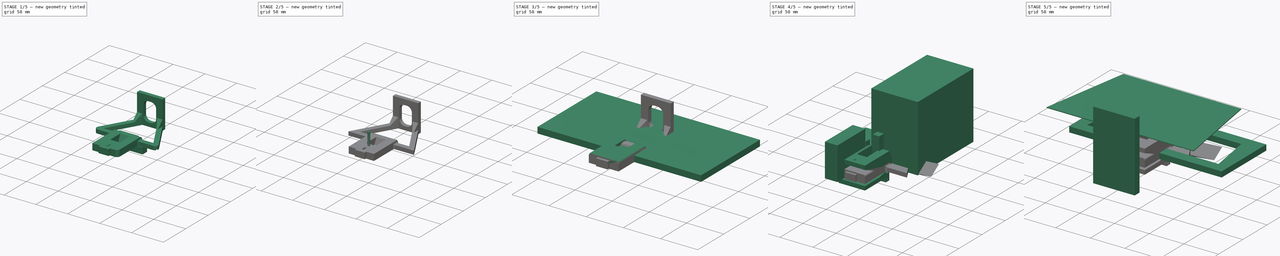
[diagram: build sequence overview — one tinted view per stage of 5, left to right]
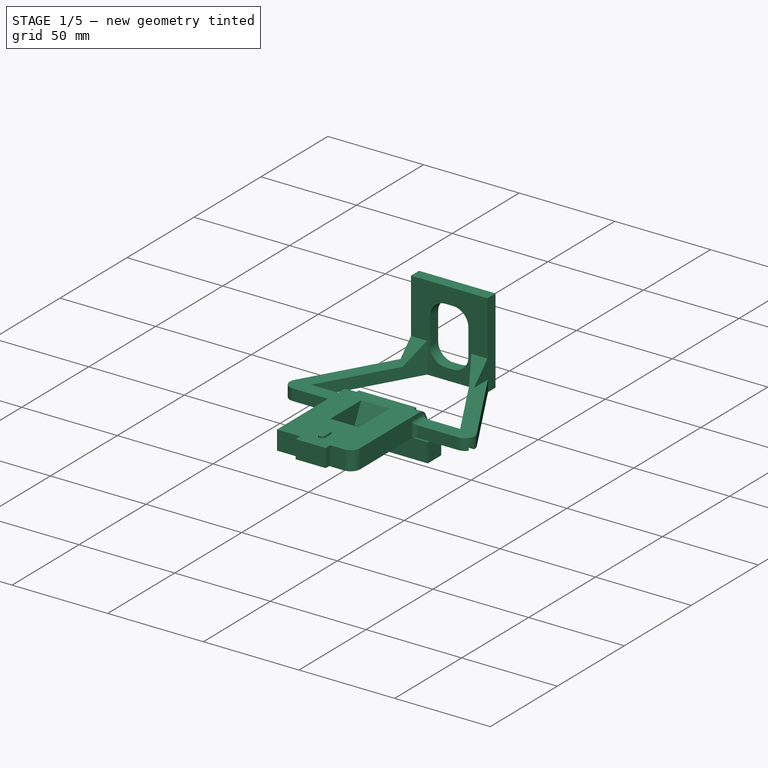
[diagram: stage 1 of 5 — iso view after this stage's code; geometry added in this stage tinted green]
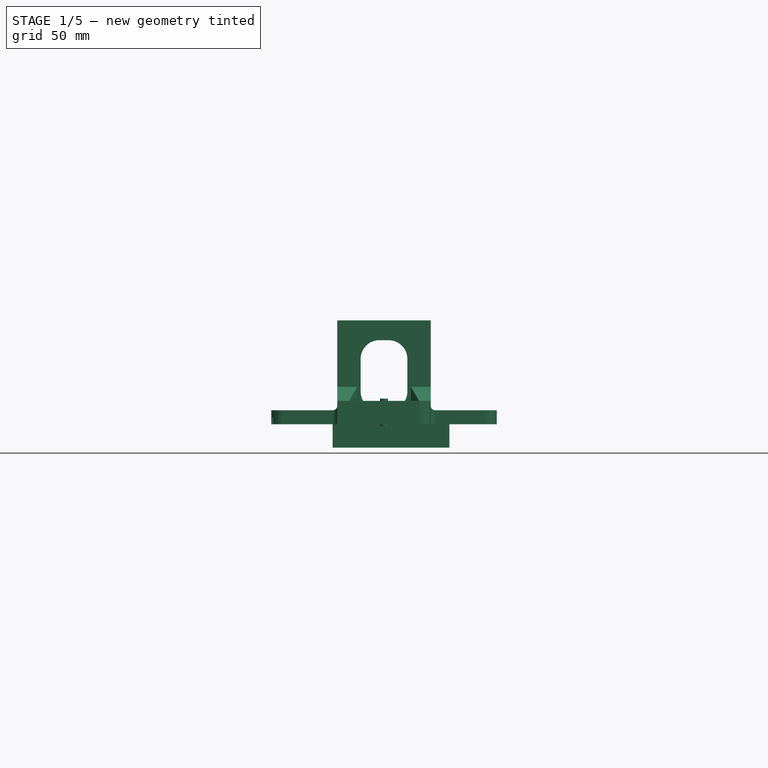
[diagram: stage 1 of 5 — front view after this stage's code; geometry added in this stage tinted green]
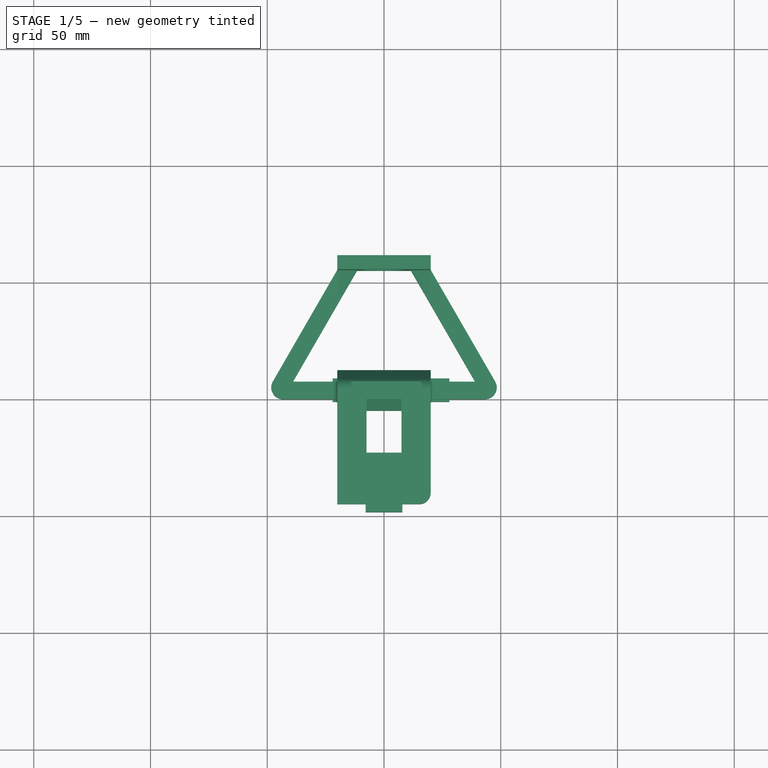
[diagram: stage 1 of 5 — top view after this stage's code; geometry added in this stage tinted green]
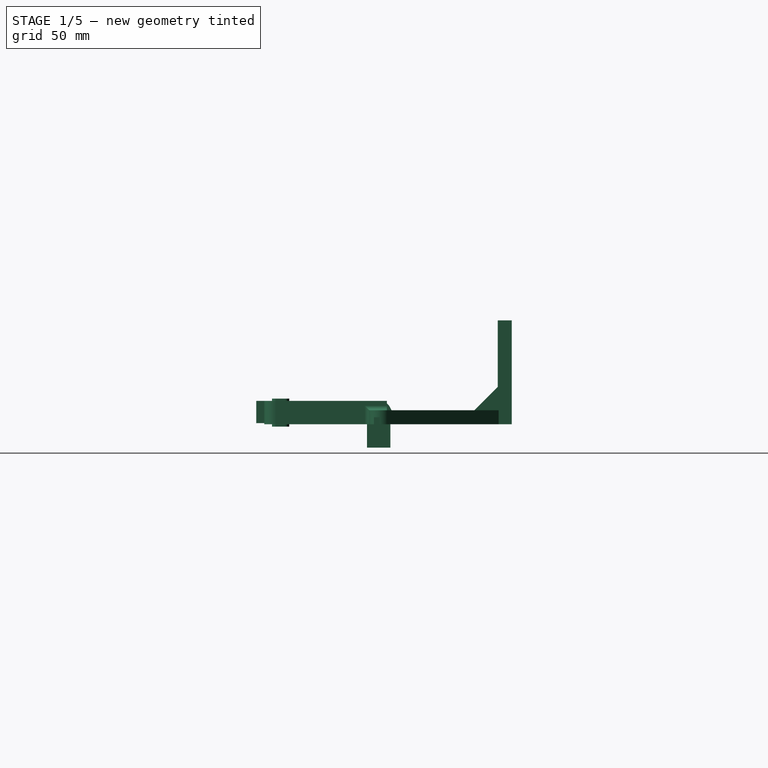
[diagram: stage 1 of 5 — right view after this stage's code; geometry added in this stage tinted green]
FCSTD DOCUMENT  (FreeCAD 0.18R4 (GitTag))
Label: soporte_celular_auto_v3
License: All rights reserved
LicenseURL: http://en.wikipedia.org/wiki/All_rights_reserved
objects: Part::Box×52, Part::Cut×40, Part::Fillet×25, Part::Extrusion×19, Sketcher::SketchObject×18, Part::MultiFuse×15, Part::Feature×12, Part::Prism×6, Part::Cylinder×5, Part::Chamfer×2
note: 194 computed .brp shape members not serialized (recipe doc carries the construction recipe); baked Part::Feature solids carry a one-line shape summary decoded from their .brp

FEATURE [Part::Feature] Fusion004009004002001  label="soporte_3.2"
  shape: bbox 96.6 x 106 x 44.5 mm, 78 faces (baked)
FEATURE [Part::Box] Box035  label="Cube032"
  AttacherType = Attacher::AttachEngine3D
  Height = 10
  Length = 50
  Placement = pos=(-22,-1,-10) rot=(0,0,1;0rad)
  Width = 10
FEATURE [Part::Box] Box037  label="Cube033"
  AttacherType = Attacher::AttachEngine3D
  Height = 10
  Length = 30
  Placement = pos=(-14,0,0) rot=(0,0,1;0rad)
  Width = 7.5
FEATURE [Part::Box] Box038  label="Cube034"
  AttacherType = Attacher::AttachEngine3D
  Height = 10
  Length = 12.5
  Placement = pos=(-20,-45,0) rot=(0,0,1;0rad)
  Width = 46
FEATURE [Part::Box] Box040  label="Cube036"
  AttacherType = Attacher::AttachEngine3D
  Height = 10
  Length = 12.5
  Placement = pos=(-20,-45,0) rot=(0,0,1;0rad)
  Width = 46
FEATURE [Part::Box] Box041  label="Cube037"
  AttacherType = Attacher::AttachEngine3D
  Height = 6
  Length = 15
  Placement = pos=(12.5,22,20) rot=(0,0,1;0rad)
  Width = 70
FEATURE [Part::Box] Box042  label="Cube038"
  AttacherType = Attacher::AttachEngine3D
  Height = 12
  Length = 12.5
  Placement = pos=(7.5,0,13) rot=(0,0,1;0rad)
  Width = 7.5
FEATURE [Part::Cylinder] Cylinder004
  Angle = 360
  AttacherType = Attacher::AttachEngine3D
  Height = 30
  Placement = pos=(0,7,0) rot=(0,0,1;0rad)
  Radius = 1.7
FEATURE [Part::Box] Box043  label="Cube039"
  AttacherType = Attacher::AttachEngine3D
  Height = 12
  Length = 12.5
  Placement = pos=(-20,0,13) rot=(0,0,1;0rad)
  Width = 7.5
FEATURE [Part::Box] Box044  label="Cube040"
  AttacherType = Attacher::AttachEngine3D
  Height = 6
  Length = 40
  Placement = pos=(0,0,20) rot=(0,0,1;0rad)
  Width = 51
FEATURE [Part::Cut] Cut004028
  Base = -> Box044
  Placement = pos=(-20,0,-1) rot=(0,0,1;0rad)
  Tool = -> Box041
FEATURE [Part::Cut] Cut004027
  Base = -> Cut004028
  Placement = pos=(0,-45,0) rot=(0,0,1;0rad)
  Tool = -> Cylinder004
FEATURE [Part::MultiFuse] Fusion004009004002003  label="pieza_fronta_cuadrada_sin_soportes001"
  Placement = pos=(0,0,-15) rot=(0,0,1;0rad)
  Shapes = -> [Cut004027,Box042,Box043]
FEATURE [Part::Box] Box045  label="Cube041"
  AttacherType = Attacher::AttachEngine3D
  Height = 10
  Length = 30
  Placement = pos=(-14,0,0) rot=(0,0,1;0rad)
  Width = 7.5
FEATURE [Part::Box] Box046  label="corte_canaleta003"
  AttacherType = Attacher::AttachEngine3D
  Height = 3
  Length = 220
  Placement = pos=(-110,2,0) rot=(0,0,1;0rad)
  Width = 2.5
FEATURE [Part::Box] Box047  label="Cube042"
  AttacherType = Attacher::AttachEngine3D
  Height = 10
  Length = 50
  Placement = pos=(-22,-1,-10) rot=(0,0,1;0rad)
  Width = 10
FEATURE [Part::Cut] Cut004030
  Base = -> Fusion004009004002003
  Tool = -> Box047
FEATURE [Part::MultiFuse] Fusion004009004002004
  Shapes = -> [Cut004030,Box045]
FEATURE [Part::Cut] Cut004029
  Base = -> Fusion004009004002004
  Tool = -> Box046
FEATURE [Sketcher::SketchObject] Sketch016
  ExternalGeometry = -> [Cut004029]
  MapMode = 5
  Placement = pos=(-20,-45,0) rot=(0.57735,-0.57735,-0.57735;2.0944rad)
  Support = -> [Box040]
  sketch-geometry (3):
    g0: LineSegment StartX=-52.5 StartY=10 StartZ=0 EndX=-52.5 EndY=0 EndZ=0
    g1: LineSegment StartX=-52.5 StartY=0 StartZ=0 EndX=-57.5 EndY=0 EndZ=0
    g2: LineSegment StartX=-57.5 StartY=0 StartZ=0 EndX=-52.5 EndY=10 EndZ=0
  constraints (8):
    c: PointOnObject(g0,g-1)
    c: Vertical(g0)
    c: Coincident(g0,g1)
    c: PointOnObject(g1,g-1)
    c: Coincident(g1,g2)
    c: Coincident(g2,g0)
    c: DistanceX(g1,g1) = 5
    c: Coincident(g0,g-3)
FEATURE [Part::Extrusion] Extrude019
  Base = -> Sketch016
  Dir = (-1,0,0)
  DirMode = 2
  FaceMakerClass = Part::FaceMakerBullseye
  LengthFwd = 40
  LengthRev = 0
  Placement = pos=(-40,7.5,0) rot=(0,0,1;3.14159rad)
  Solid = true
  Symmetric = false
FEATURE [Part::Feature] Fusion004009004002007001  label="soporte_3.3_sin_refinar001"
  shape: bbox 103.9 x 106 x 44.5 mm, 35 faces (baked)
FEATURE [Part::Box] Box053  label="Cube047"
  AttacherType = Attacher::AttachEngine3D
  Height = 10
  Length = 15
  Placement = pos=(-7.5,-45,0) rot=(0,0,1;0rad)
  Width = 22
FEATURE [Part::Box] Box054  label="Cube048"
  AttacherType = Attacher::AttachEngine3D
  Height = 9.5
  Length = 15.7
  Placement = pos=(-7.85,-48.45,0.5) rot=(0,0,1;0rad)
  Width = 3.45
FEATURE [Part::MultiFuse] Fusion004009004002007002
  Shapes = -> [Box053,Box054]
FEATURE [Sketcher::SketchObject] Sketch018
  MapMode = 5
  Placement = pos=(0,0,10) rot=(0,0,1;0rad)
  Support = -> [Fusion004009004002007001]
  sketch-geometry (4):
    g0: ArcOfCircle CenterX=-1e-16 CenterY=-36 CenterZ=0 NormalX=0 NormalY=0 NormalZ=1 AngleXU=0 Radius=1.7 StartAngle=0 EndAngle=3.14159
    g1: ArcOfCircle CenterX=-1e-16 CenterY=-40 CenterZ=0 NormalX=0 NormalY=0 NormalZ=1 AngleXU=0 Radius=1.7 StartAngle=3.14159 EndAngle=6.28319
    g2: LineSegment StartX=-1.7 StartY=-36 StartZ=0 EndX=-1.7 EndY=-40 EndZ=0
    g3: LineSegment StartX=1.7 StartY=-36 StartZ=0 EndX=1.7 EndY=-40 EndZ=0
  constraints (10):
    c: Tangent(g0,g3) = 1.5708
    c: Tangent(g0,g2) = -1.5708
    c: Tangent(g2,g1) = -1.5708
    c: Tangent(g3,g1) = 1.5708
    c: Vertical(g2)
    c: Equal(g0,g1)
    c: DistanceX(g0,g0) = 3.4
    c: DistanceY(g1,g0) = 4
    c: DistanceX(g0,g-1) = 1.7
    c: DistanceY(g0,g-1) = 36
FEATURE [Part::Extrusion] Extrude021
  Base = -> Sketch018
  Dir = (0,0,1)
  DirMode = 2
  FaceMakerClass = Part::FaceMakerBullseye
  LengthFwd = 12
  LengthRev = 0
  Placement = pos=(0,0,-11) rot=(0,0,1;0rad)
  Solid = true
  Symmetric = false
FEATURE [Part::Cut] Cut004036  label="refuerzo_parte_frontal_33_001"
  Base = -> Fusion004009004002007002
  Tool = -> Extrude021
FEATURE [Part::Feature] Fusion004009004002007003  label="soporte_3.3_sin_refinar002"
  shape: bbox 103.9 x 106 x 44.5 mm, 35 faces (baked)
FEATURE [Sketcher::SketchObject] Sketch019
  MapMode = 5
  Placement = pos=(0,0,10) rot=(0,0,1;0rad)
  Support = -> [Fusion004009004002007003]
  sketch-geometry (4):
    g0: ArcOfCircle CenterX=-1e-16 CenterY=-36 CenterZ=0 NormalX=0 NormalY=0 NormalZ=1 AngleXU=0 Radius=1.7 StartAngle=0 EndAngle=3.14159
    g1: ArcOfCircle CenterX=-1e-16 CenterY=-40 CenterZ=0 NormalX=0 NormalY=0 NormalZ=1 AngleXU=0 Radius=1.7 StartAngle=3.14159 EndAngle=6.28319
    g2: LineSegment StartX=-1.7 StartY=-36 StartZ=0 EndX=-1.7 EndY=-40 EndZ=0
    g3: LineSegment StartX=1.7 StartY=-36 StartZ=0 EndX=1.7 EndY=-40 EndZ=0
  constraints (10):
    c: Tangent(g0,g3) = 1.5708
    c: Tangent(g0,g2) = -1.5708
    c: Tangent(g2,g1) = -1.5708
    c: Tangent(g3,g1) = 1.5708
    c: Vertical(g2)
    c: Equal(g0,g1)
    c: DistanceX(g0,g0) = 3.4
    c: DistanceY(g1,g0) = 4
    c: DistanceX(g0,g-1) = 1.7
    c: DistanceY(g0,g-1) = 36
FEATURE [Part::Extrusion] Extrude022
  Base = -> Sketch019
  Dir = (0,0,1)
  DirMode = 2
  FaceMakerClass = Part::FaceMakerBullseye
  LengthFwd = 12
  LengthRev = 0
  Placement = pos=(0,0,-11) rot=(0,0,1;0rad)
  Solid = true
  Symmetric = false
FEATURE [Part::Box] Box055  label="Cube049"
  AttacherType = Attacher::AttachEngine3D
  Height = 2.5
  Length = 6.3
  Placement = pos=(-3.15,-42,0) rot=(0,0,1;0rad)
  Width = 8
FEATURE [Part::Cut] Cut004038  label="refuerzo_parte_frontal_34"
  Base = -> Cut004036
  Tool = -> Box055
FEATURE [Part::Feature] Fusion004009004002007005001  label="soporte_3.4"
  shape: bbox 103.9 x 109.5 x 44.5 mm, 46 faces (baked)
FEATURE [Part::Fillet] Fillet008017002
  Base = -> Fusion004009004002007005001
  Edges = 4 edges r=8: [Edge94,Edge95,Edge96,Edge99]
FEATURE [Part::Chamfer] Chamfer002
  Base = -> Fillet008017002
  Edges = 2 edges r=10: [Edge52,Edge53]
FEATURE [Part::Fillet] Fillet008017003
  Base = -> Chamfer002
  Edges = 2 edges r=5: [Edge60,Edge90]
FEATURE [Part::Fillet] Fillet008017004
  Base = -> Fillet008017003
  Edges = 2 edges r=5: [Edge21,Edge67]
FEATURE [Part::Fillet] Fillet008017005
  Base = -> Fillet008017004
  Edges = 1 edges r=5: [Edge30]
FEATURE [Part::Fillet] Fillet008017006  label="soporte_3.4_final"
  Base = -> Fillet008017005
  Edges = 4 edges r=2: [Edge7,Edge9,Edge74,Edge76]
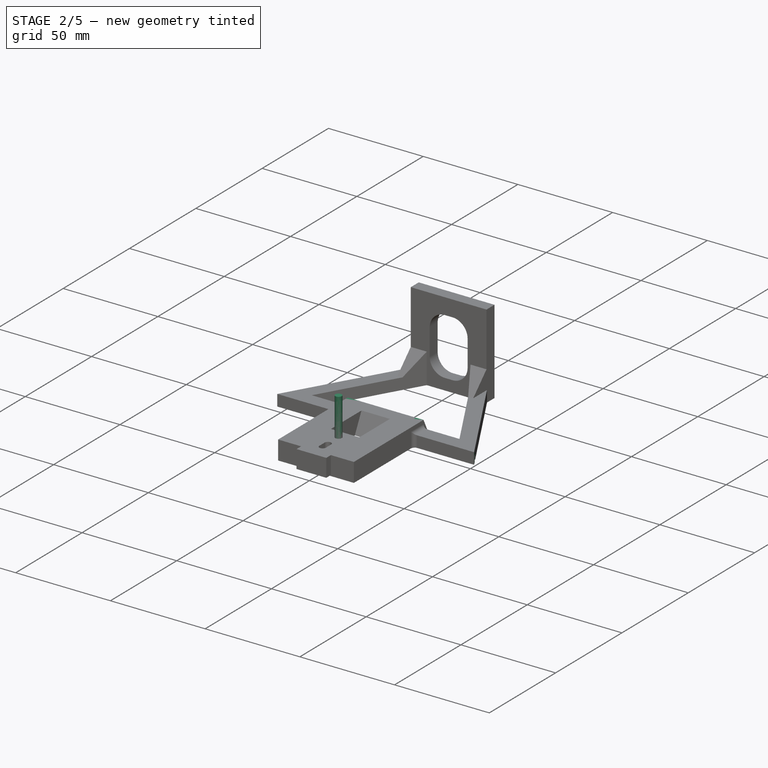
[diagram: stage 2 of 5 — iso view after this stage's code; geometry added in this stage tinted green]
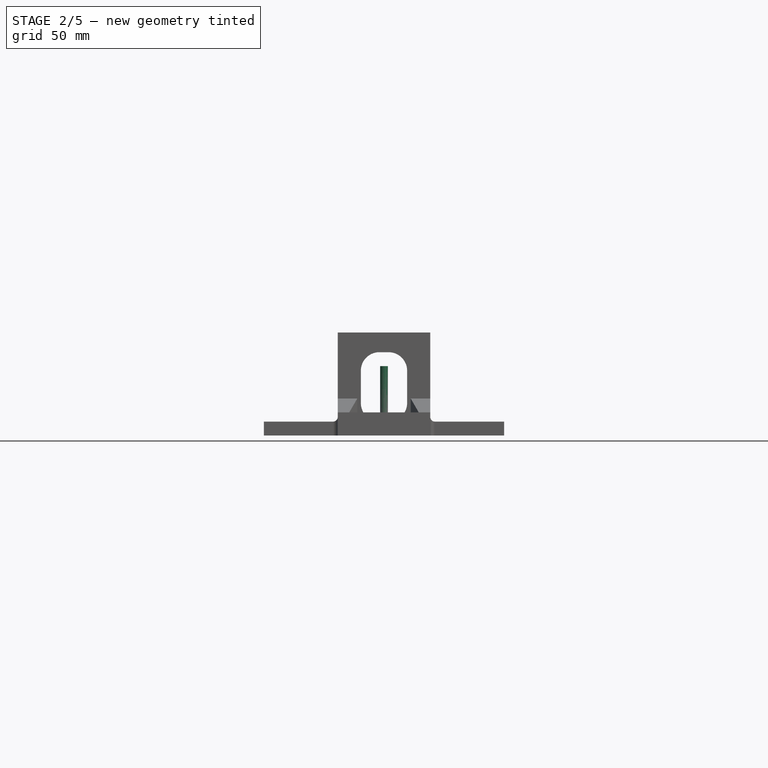
[diagram: stage 2 of 5 — front view after this stage's code; geometry added in this stage tinted green]
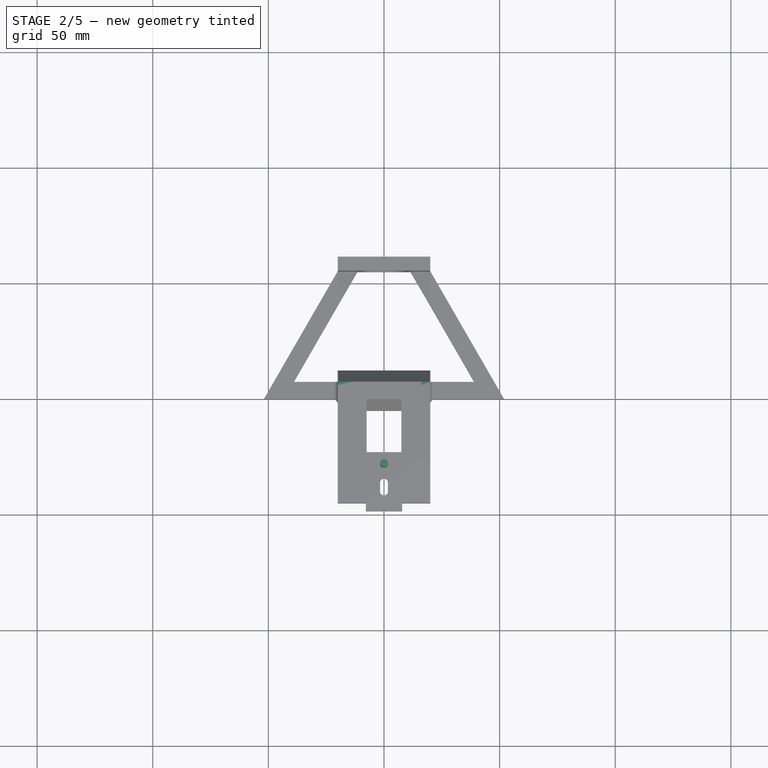
[diagram: stage 2 of 5 — top view after this stage's code; geometry added in this stage tinted green]
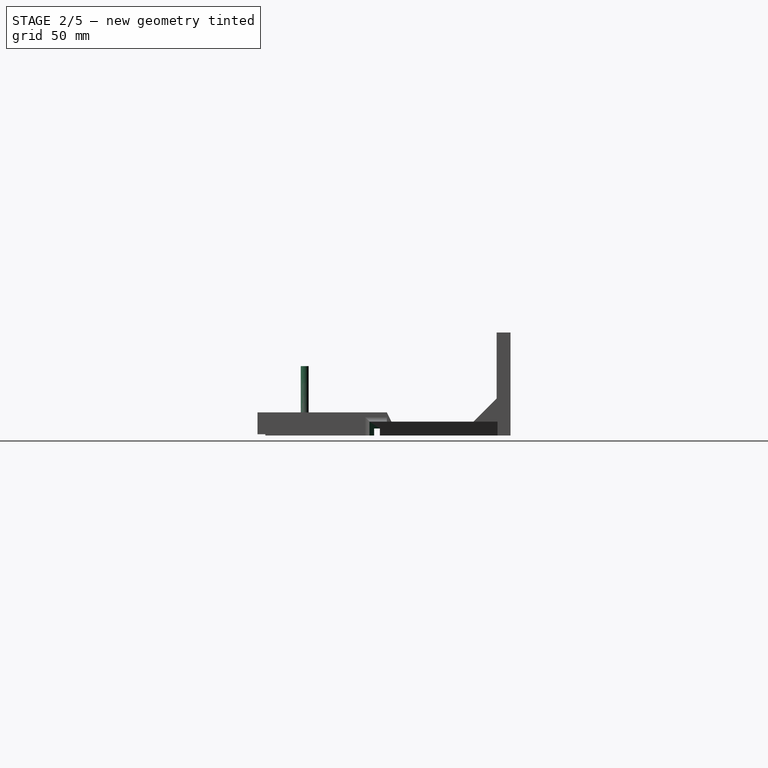
[diagram: stage 2 of 5 — right view after this stage's code; geometry added in this stage tinted green]
FEATURE [Part::Box] Box006  label="Cube006"
  AttacherType = Attacher::AttachEngine3D
  Height = 6
  Length = 40
  Placement = pos=(0,0,20) rot=(0,0,1;0rad)
  Width = 51
FEATURE [Part::Box] Box007  label="Cube007"
  AttacherType = Attacher::AttachEngine3D
  Height = 6
  Length = 15
  Placement = pos=(12.5,22,20) rot=(0,0,1;0rad)
  Width = 70
FEATURE [Part::Cut] Cut004005
  Base = -> Box006
  Placement = pos=(-20,0,-1) rot=(0,0,1;0rad)
  Tool = -> Box007
FEATURE [Part::Cylinder] Cylinder
  Angle = 360
  AttacherType = Attacher::AttachEngine3D
  Height = 30
  Placement = pos=(0,7,0) rot=(0,0,1;0rad)
  Radius = 1.7
FEATURE [Part::Cut] Cut004006
  Base = -> Cut004005
  Placement = pos=(0,-45,0) rot=(0,0,1;0rad)
  Tool = -> Cylinder
FEATURE [Part::Box] Box009  label="Cube008"
  AttacherType = Attacher::AttachEngine3D
  Height = 12
  Length = 12.5
  Placement = pos=(7.5,0,13) rot=(0,0,1;0rad)
  Width = 7.5
FEATURE [Part::Box] Box010  label="Cube009"
  AttacherType = Attacher::AttachEngine3D
  Height = 12
  Length = 12.5
  Placement = pos=(-20,0,13) rot=(0,0,1;0rad)
  Width = 7.5
FEATURE [Part::MultiFuse] Fusion004002  label="pieza_fronta_cuadrada_sin_soportes"
  Placement = pos=(0,0,-15) rot=(0,0,1;0rad)
  Shapes = -> [Cut004006,Box009,Box010]
FEATURE [Part::Cylinder] Cylinder003
  Angle = 360
  AttacherType = Attacher::AttachEngine3D
  Height = 30
  Placement = pos=(0,-28,0) rot=(0,0,1;0rad)
  Radius = 1.7
FEATURE [Part::Cut] Cut004025
  Base = -> Fusion004002
  Tool = -> Box035
FEATURE [Part::Box] Box036  label="corte_canaleta002"
  AttacherType = Attacher::AttachEngine3D
  Height = 3
  Length = 220
  Placement = pos=(-110,2,0) rot=(0,0,1;0rad)
  Width = 2.5
FEATURE [Part::MultiFuse] Fusion004009004002002
  Shapes = -> [Cut004025,Box037]
FEATURE [Part::Cut] Cut004026
  Base = -> Fusion004009004002002
  Tool = -> Box036
FEATURE [Part::Box] Box039  label="Cube035"
  AttacherType = Attacher::AttachEngine3D
  Height = 10
  Length = 12.5
  Placement = pos=(7.5,-45,0) rot=(0,0,1;0rad)
  Width = 46
FEATURE [Sketcher::SketchObject] Sketch015
  ExternalGeometry = -> [Cut004026]
  MapMode = 5
  Placement = pos=(-20,-45,0) rot=(0.57735,-0.57735,-0.57735;2.0944rad)
  Support = -> [Box038]
  sketch-geometry (3):
    g0: LineSegment StartX=-52.5 StartY=10 StartZ=0 EndX=-52.5 EndY=0 EndZ=0
    g1: LineSegment StartX=-52.5 StartY=0 StartZ=0 EndX=-57.5 EndY=0 EndZ=0
    g2: LineSegment StartX=-57.5 StartY=0 StartZ=0 EndX=-52.5 EndY=10 EndZ=0
  constraints (8):
    c: PointOnObject(g0,g-1)
    c: Vertical(g0)
    c: Coincident(g0,g1)
    c: PointOnObject(g1,g-1)
    c: Coincident(g1,g2)
    c: Coincident(g2,g0)
    c: DistanceX(g1,g1) = 5
    c: Coincident(g0,g-3)
FEATURE [Part::Extrusion] Extrude018
  Base = -> Sketch015
  Dir = (-1,0,0)
  DirMode = 2
  FaceMakerClass = Part::FaceMakerBullseye
  LengthFwd = 40
  LengthRev = 0
  Placement = pos=(40,0,0) rot=(0,0,1;0rad)
  Solid = true
  Symmetric = false
FEATURE [Part::MultiFuse] Fusion004009004002005  label="parte_frontal_v3.3_acanaletado"
  Shapes = -> [Cut004026,Box038,Cut004029,Extrude018,Box040,Box039,Extrude019]
FEATURE [Part::Box] Box048  label="Cube043"
  AttacherType = Attacher::AttachEngine3D
  Height = 30
  Length = 20
  Placement = pos=(-10,55,6) rot=(0,0,1;0rad)
  Width = 6
FEATURE [Part::Box] Box049  label="Cube044"
  AttacherType = Attacher::AttachEngine3D
  Height = 44.5
  Length = 40
  Placement = pos=(-20,55,0) rot=(0,0,1;0rad)
  Width = 6
FEATURE [Part::Cut] Cut004031  label="parte_trasera33"
  Base = -> Box049
  Tool = -> Box048
FEATURE [Sketcher::SketchObject] Sketch017
  sketch-geometry (4):
    g0: LineSegment StartX=-95 StartY=0 StartZ=0 EndX=95 EndY=-9e-16 EndZ=0
    g1: LineSegment StartX=-95 StartY=0 StartZ=0 EndX=-85 EndY=61 EndZ=0
    g2: LineSegment StartX=95 StartY=-9e-16 StartZ=0 EndX=85 EndY=61 EndZ=0
    g3: LineSegment StartX=-85 StartY=61 StartZ=0 EndX=85 EndY=61 EndZ=0
  constraints (10):
    c: PointOnObject(g0,g-1)
    c: Symmetric(g0,g0,g-2)
    c: DistanceX(g0,g0) = 190
    c: Coincident(g1,g0)
    c: Coincident(g2,g0)
    c: Coincident(g3,g1)
    c: Coincident(g3,g2)
    c: Symmetric(g1,g2,g-2)
    c: DistanceX(g3,g3) = 170
    c: DistanceY(g0,g2) = 61
FEATURE [Part::Extrusion] Extrude020
  Base = -> Sketch017
  Dir = (0,0,1)
  DirMode = 2
  FaceMakerClass = Part::FaceMakerBullseye
  LengthFwd = 10
  LengthRev = 0
  Solid = true
  Symmetric = false
FEATURE [Part::Prism] Prism006
  AttacherType = Attacher::AttachEngine3D
  Circumradius = 45
  Height = 6
  Placement = pos=(0,23,0) rot=(0,0,-1;0.523599rad)
  Polygon = 3
FEATURE [Part::Box] Box050  label="Cube045"
  AttacherType = Attacher::AttachEngine3D
  Height = 6
  Length = 32
  Placement = pos=(-16,55,0) rot=(0,0,1;0rad)
  Width = 6
FEATURE [Part::Box] Box051  label="corte_canaleta004"
  AttacherType = Attacher::AttachEngine3D
  Height = 3
  Length = 220
  Placement = pos=(-110,2,0) rot=(0,0,1;0rad)
  Width = 2.5
FEATURE [Part::Box] Box052  label="Cube046"
  AttacherType = Attacher::AttachEngine3D
  Height = 8
  Length = 220
  Placement = pos=(-110,-15,0) rot=(0,0,1;0rad)
  Width = 113
FEATURE [Part::Cut] Cut004035  label="molde_cortador003"
  Base = -> Box052
  Tool = -> Extrude020
FEATURE [Part::Prism] Prism007
  AttacherType = Attacher::AttachEngine3D
  Circumradius = 60
  Height = 6
  Placement = pos=(0,23,0) rot=(0,0,-1;0.523599rad)
  Polygon = 3
FEATURE [Part::Cut] Cut004032
  Base = -> Prism007
  Placement = pos=(0,7,0) rot=(0,0,1;0rad)
  Tool = -> Prism006
FEATURE [Part::MultiFuse] Fusion004009004002006
  Shapes = -> [Cut004032,Box050]
FEATURE [Part::Cut] Cut004034  label="base_triangulo002"
  Base = -> Fusion004009004002006
  Tool = -> Cut004035
FEATURE [Part::Cut] Cut004033  label="base_triangulo_con_canaleta33"
  Base = -> Cut004034
  Tool = -> Box051
FEATURE [Part::Cut] Cut004037  label="parte_fronrtal_33"
  Base = -> Fusion004009004002005
  Tool = -> Extrude022
FEATURE [Part::MultiFuse] Fusion004009004002007004  label="parte_frontal_con_refuerzo34"
  Shapes = -> [Cut004037,Cut004038]
FEATURE [Part::MultiFuse] Fusion004009004002007005  label="soporte_3.4_sin_refinar"
  Shapes = -> [Cut004031,Cut004033,Fusion004009004002007004]
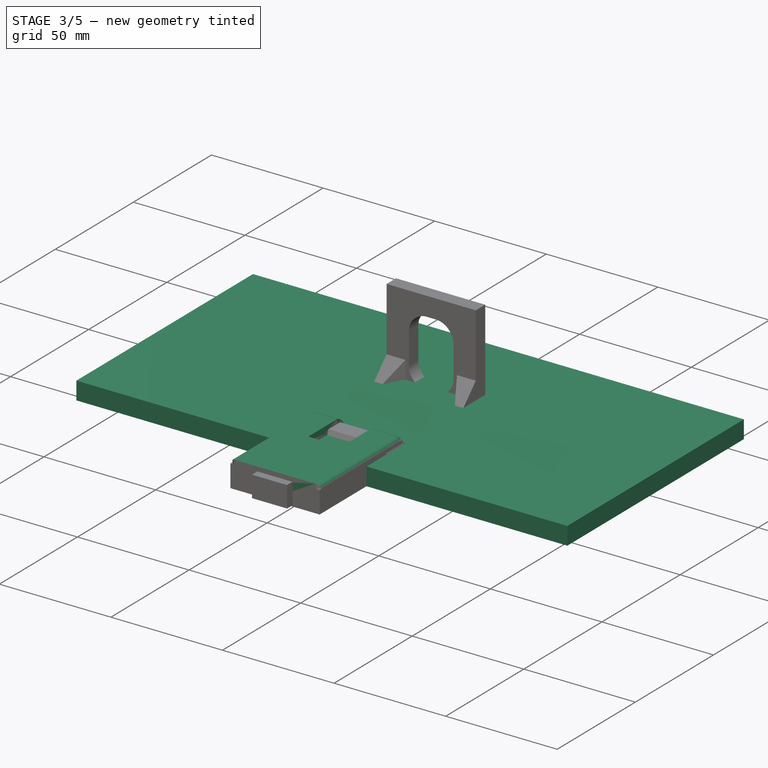
[diagram: stage 3 of 5 — iso view after this stage's code; geometry added in this stage tinted green]
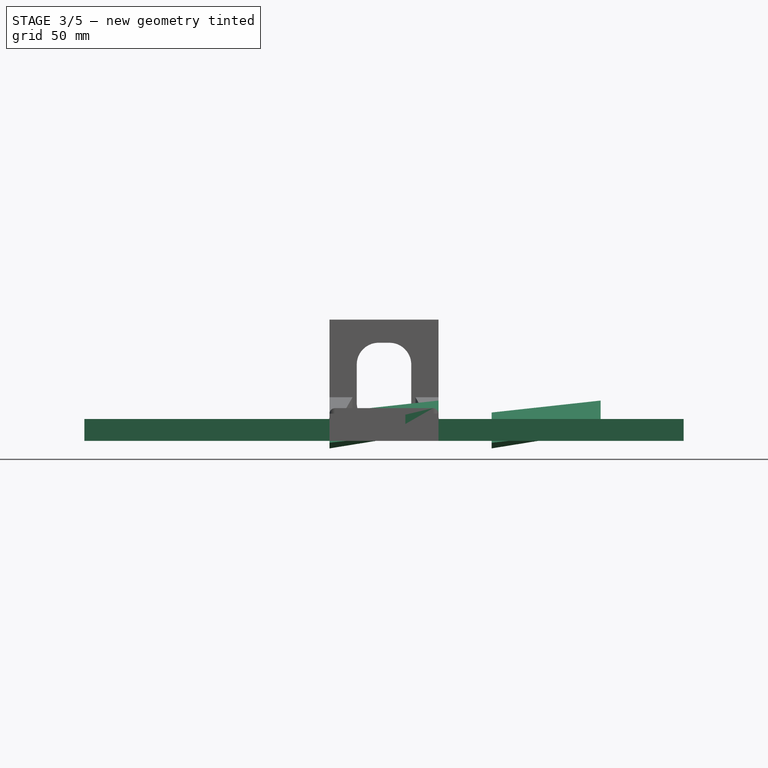
[diagram: stage 3 of 5 — front view after this stage's code; geometry added in this stage tinted green]
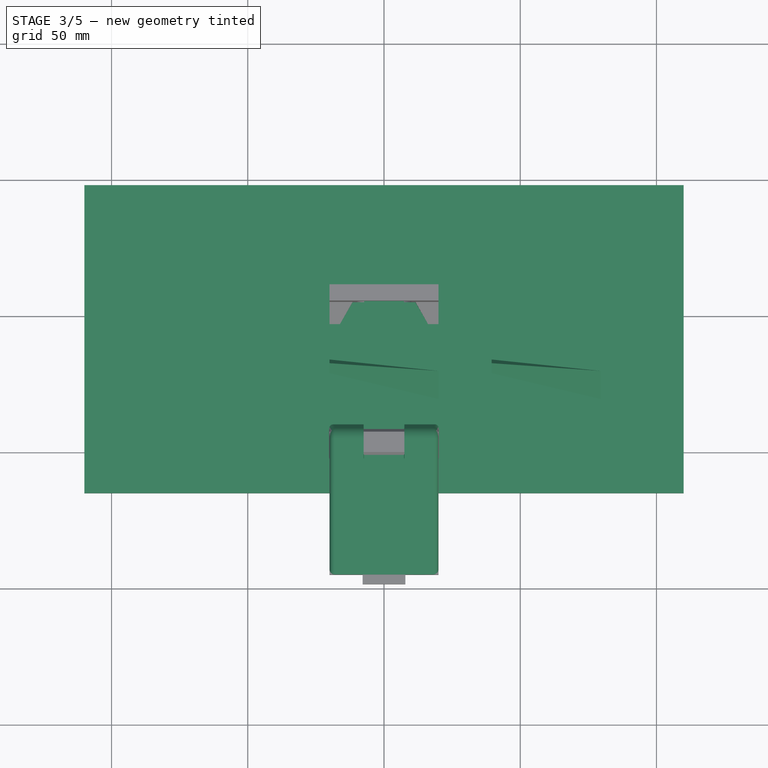
[diagram: stage 3 of 5 — top view after this stage's code; geometry added in this stage tinted green]
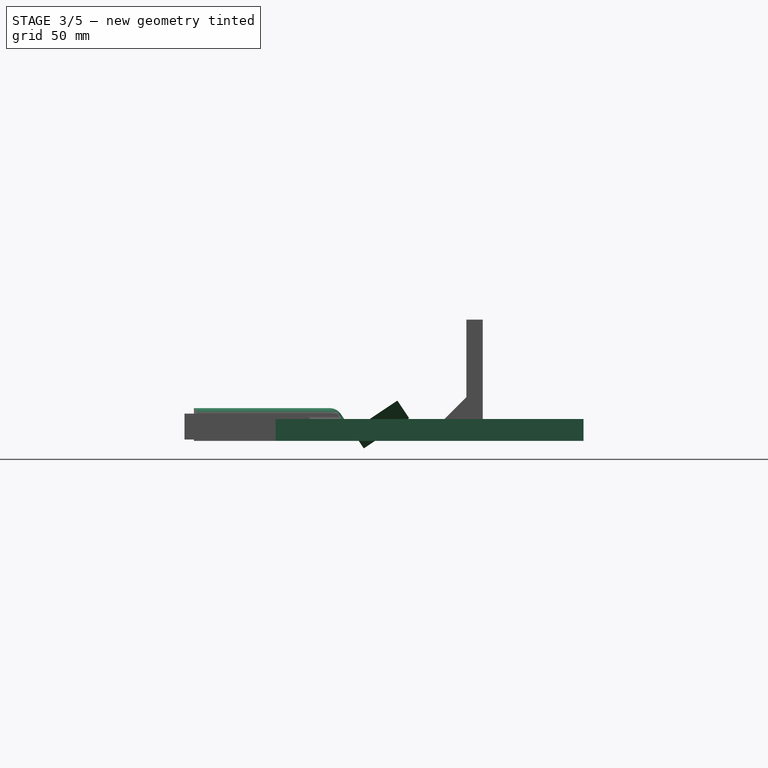
[diagram: stage 3 of 5 — right view after this stage's code; geometry added in this stage tinted green]
FEATURE [Part::Prism] Prism004
  AttacherType = Attacher::AttachEngine3D
  Circumradius = 45
  Height = 6
  Placement = pos=(0,23,0) rot=(0,0,-1;0.523599rad)
  Polygon = 3
FEATURE [Part::Box] Box023  label="corte_canaleta"
  AttacherType = Attacher::AttachEngine3D
  Height = 3
  Length = 220
  Placement = pos=(-110,2,0) rot=(0,0,1;0rad)
  Width = 2.5
FEATURE [Part::Box] Box024  label="Cube023"
  AttacherType = Attacher::AttachEngine3D
  Height = 8
  Length = 220
  Placement = pos=(-110,-15,0) rot=(0,0,1;0rad)
  Width = 113
FEATURE [Part::Prism] Prism005
  AttacherType = Attacher::AttachEngine3D
  Circumradius = 60
  Height = 6
  Placement = pos=(0,23,0) rot=(0,0,-1;0.523599rad)
  Polygon = 3
FEATURE [Part::Cut] Cut004019
  Base = -> Prism005
  Placement = pos=(0,7,0) rot=(0,0,1;0rad)
  Tool = -> Prism004
FEATURE [Part::Box] Box026  label="Cube025"
  AttacherType = Attacher::AttachEngine3D
  Height = 6
  Length = 32
  Placement = pos=(-16,55,0) rot=(0,0,1;0rad)
  Width = 6
FEATURE [Part::MultiFuse] Fusion004005
  Shapes = -> [Cut004019,Box026]
FEATURE [Sketcher::SketchObject] Sketch010
  ExternalGeometry = -> [Fusion004002,Box010]
  MapMode = 5
  Placement = pos=(-20,0,-15) rot=(0.57735,-0.57735,-0.57735;2.0944rad)
  Support = -> [Fusion004002]
  sketch-geometry (3):
    g0: LineSegment StartX=0 StartY=28 StartZ=0 EndX=0 EndY=19 EndZ=0
    g1: LineSegment StartX=0 StartY=19 StartZ=0 EndX=45 EndY=19 EndZ=0
    g2: LineSegment StartX=45 StartY=19 StartZ=0 EndX=0 EndY=28 EndZ=0
  constraints (6):
    c: Coincident(g0,g1)
    c: Coincident(g1,g2)
    c: Coincident(g0,g2)
    c: Coincident(g0,g-3)
    c: Coincident(g0,g-4)
    c: Coincident(g1,g-3)
FEATURE [Sketcher::SketchObject] Sketch011
  ExternalGeometry = -> [Box010]
  MapMode = 5
  Placement = pos=(-20,0,13) rot=(0.57735,-0.57735,-0.57735;2.0944rad)
  Support = -> [Box010]
  sketch-geometry (3):
    g0: LineSegment StartX=-7.5 StartY=12 StartZ=0 EndX=-7.5 EndY=0 EndZ=0
    g1: LineSegment StartX=-7.5 StartY=0 StartZ=0 EndX=-15.5 EndY=0 EndZ=0
    g2: LineSegment StartX=-15.5 StartY=0 StartZ=0 EndX=-7.5 EndY=12 EndZ=0
  constraints (7):
    c: Horizontal(g1)
    c: DistanceX(g1,g1) = 8
    c: Coincident(g1,g0)
    c: Coincident(g0,g2)
    c: Coincident(g1,g2)
    c: Coincident(g0,g-3)
    c: Coincident(g-3,g0)
FEATURE [Part::Extrusion] Extrude012  label="soporte_trasero"
  Base = -> Sketch011
  Dir = (-1,0,0)
  DirMode = 2
  FaceMakerClass = Part::FaceMakerBullseye
  LengthFwd = 12.5
  LengthRev = 0
  Placement = pos=(40,0,0) rot=(0,0,1;0rad)
  Solid = true
  Symmetric = false
FEATURE [Part::Extrusion] Extrude013  label="soporte_delantero"
  Base = -> Sketch010
  Dir = (-1,0,0)
  DirMode = 2
  FaceMakerClass = Part::FaceMakerBullseye
  LengthFwd = 12.5
  LengthRev = 0
  Placement = pos=(40,0,0) rot=(0,0,1;0rad)
  Solid = true
  Symmetric = false
FEATURE [Part::Box] Box032  label="Cube030"
  AttacherType = Attacher::AttachEngine3D
  Height = 12
  Length = 12.5
  Placement = pos=(-20,0,13) rot=(0,0,1;0rad)
  Width = 7.5
FEATURE [Sketcher::SketchObject] Sketch012
  ExternalGeometry = -> [Box032]
  MapMode = 5
  Placement = pos=(-20,0,13) rot=(0.57735,-0.57735,-0.57735;2.0944rad)
  Support = -> [Box032]
  sketch-geometry (3):
    g0: LineSegment StartX=-7.5 StartY=12 StartZ=0 EndX=-7.5 EndY=0 EndZ=0
    g1: LineSegment StartX=-7.5 StartY=0 StartZ=0 EndX=-15.5 EndY=0 EndZ=0
    g2: LineSegment StartX=-15.5 StartY=0 StartZ=0 EndX=-7.5 EndY=12 EndZ=0
  constraints (7):
    c: Horizontal(g1)
    c: DistanceX(g1,g1) = 8
    c: Coincident(g1,g0)
    c: Coincident(g0,g2)
    c: Coincident(g1,g2)
    c: Coincident(g0,g-3)
    c: Coincident(g-3,g0)
FEATURE [Part::Extrusion] Extrude014  label="soporte_trasero001"
  Base = -> Sketch012
  Dir = (-1,0,0)
  DirMode = 2
  FaceMakerClass = Part::FaceMakerBullseye
  LengthFwd = 12.5
  LengthRev = 0
  Placement = pos=(12.5,0,0) rot=(0,0,1;0rad)
  Solid = true
  Symmetric = false
FEATURE [Sketcher::SketchObject] Sketch013
  MapMode = 5
  Placement = pos=(-20,0,0) rot=(0.57735,-0.57735,-0.57735;2.0944rad)
  sketch-geometry (3):
    g0: LineSegment StartX=0 StartY=13 StartZ=0 EndX=0 EndY=19 EndZ=0
    g1: LineSegment StartX=0 StartY=19 StartZ=0 EndX=45 EndY=19 EndZ=0
    g2: LineSegment StartX=45 StartY=19 StartZ=0 EndX=0 EndY=13 EndZ=0
  constraints (3):
    c: Coincident(g0,g1)
    c: Coincident(g1,g2)
    c: Coincident(g0,g2)
FEATURE [Part::Extrusion] Extrude015  label="soporte_delantero001"
  Base = -> Sketch013
  Dir = (-1,0,0)
  DirMode = 2
  FaceMakerClass = Part::FaceMakerBullseye
  LengthFwd = 12.5
  LengthRev = 0
  Placement = pos=(12.5,0,0) rot=(0,0,1;0rad)
  Solid = true
  Symmetric = false
FEATURE [Part::MultiFuse] Fusion004009003  label="pieza_frontal_cuadrada"
  Shapes = -> [Fusion004002,Extrude012,Extrude014,Extrude013,Extrude015]
FEATURE [Part::Box] Box033  label="corte_canaleta001"
  AttacherType = Attacher::AttachEngine3D
  Height = 3
  Length = 220
  Placement = pos=(-110,2,0) rot=(0,0,1;0rad)
  Width = 2.5
FEATURE [Part::Cut] Cut004022  label="pieza_frontal_cuadrada_canaleteada"
  Base = -> Fusion004009003
  Placement = pos=(0,0,-13) rot=(0,0,1;0rad)
  Tool = -> Box033
FEATURE [Sketcher::SketchObject] Sketch014
  ExternalGeometry = -> [Cut004022]
  MapMode = 5
  Placement = pos=(0,16.7308,-1.84615) rot=(0,0.471858,0.881675;3.14159rad)
  Support = -> [Cut004022]
  sketch-geometry (3):
    g0: LineSegment StartX=-20 StartY=6.6564 StartZ=0 EndX=20 EndY=1.38675 EndZ=0
    g1: LineSegment StartX=20 StartY=1.38675 StartZ=0 EndX=20 EndY=-1.1094 EndZ=0
    g2: LineSegment StartX=20 StartY=-1.1094 StartZ=0 EndX=-20 EndY=6.6564 EndZ=0
  constraints (7):
    c: Coincident(g0,g1)
    c: Coincident(g1,g2)
    c: Coincident(g2,g0)
    c: Vertical(g1)
    c: DistanceY(g1,g-4) = 0
    c: Coincident(g0,g-3)
    c: Coincident(g0,g-5)
FEATURE [Part::Extrusion] Extrude016  label="reduerzo_frontal1"
  Base = -> Sketch014
  Dir = (0,0.83205,0.5547)
  DirMode = 2
  FaceMakerClass = Part::FaceMakerBullseye
  LengthFwd = 20
  LengthRev = 0
  Solid = true
  Symmetric = false
FEATURE [Part::Extrusion] Extrude017  label="refuerzo_frontal2"
  Base = -> Sketch014
  Dir = (0,0.83205,0.5547)
  DirMode = 2
  FaceMakerClass = Part::FaceMakerBullseye
  LengthFwd = 20
  LengthRev = 0
  Placement = pos=(59.5,0,0) rot=(0,0,1;0rad)
  Solid = true
  Symmetric = false
FEATURE [Part::Feature] Fusion004009004001  label="soporte_sin_refinar_v004"
  shape: bbox 103.9 x 106 x 44.5 mm, 40 faces (baked)
FEATURE [Part::Fillet] Fillet008008
  Base = -> Fusion004009004001
  Edges = 4 edges r=5: [Edge110,Edge111,Edge112,Edge115]
FEATURE [Part::Fillet] Fillet008009
  Base = -> Fillet008008
  Edges = 2 edges r=5: [Edge54,Edge55]
FEATURE [Part::Fillet] Fillet008010
  Base = -> Fillet008009
  Edges = 2 edges r=3: [Edge8,Edge67]
FEATURE [Part::Fillet] Fillet008011
  Base = -> Fillet008010
  Edges = 2 edges r=5: [Edge66,Edge74]
FEATURE [Part::Fillet] Fillet008012
  Base = -> Fillet008011
  Edges = 2 edges r=5: [Edge70,Edge89]
FEATURE [Part::Fillet] Fillet008013
  Base = -> Fillet008012
  Edges = 6 edges r=3: [Edge8,Edge10,Edge12,Edge46,Edge50,Edge56]
FEATURE [Part::Fillet] Fillet008014
  Base = -> Fillet008013
  Edges = 6 edges r=3: [Edge64,Edge98,Edge144,Edge146,Edge153,Edge154]
FEATURE [Part::Fillet] Fillet008015
  Base = -> Fillet008014
  Edges = 2 edges r=2: [Edge154,Edge178]
FEATURE [Part::Fillet] Fillet008016
  Base = -> Fillet008015
  Edges = 2 edges r=2: [Edge143,Edge179]
FEATURE [Part::Fillet] Fillet008017  label="soporte_v3.1"
  Base = -> Fillet008016
  Edges = 2 edges r=3: [Edge110,Edge134]
FEATURE [Part::Cylinder] Cylinder002
  Angle = 360
  AttacherType = Attacher::AttachEngine3D
  Height = 30
  Placement = pos=(0,-28,0) rot=(0,0,1;0rad)
  Radius = 1.7
FEATURE [Part::Box] Box034  label="Cube031"
  AttacherType = Attacher::AttachEngine3D
  Height = 6
  Length = 15
  Placement = pos=(-7.5,-40,6) rot=(0,0,1;0rad)
  Width = 27
FEATURE [Part::Cut] Cut004023
  Base = -> Box034
  Tool = -> Cylinder002
FEATURE [Part::Feature] Fillet008017001  label="soporte_v3.2"
  shape: bbox 96.6 x 106 x 44.5 mm, 78 faces (baked)
FEATURE [Part::Cut] Cut004024
  Base = -> Fillet008017001
  Tool = -> Cylinder003
FEATURE [Part::MultiFuse] Fusion004009004002
  Shapes = -> [Cut004024,Cut004023]
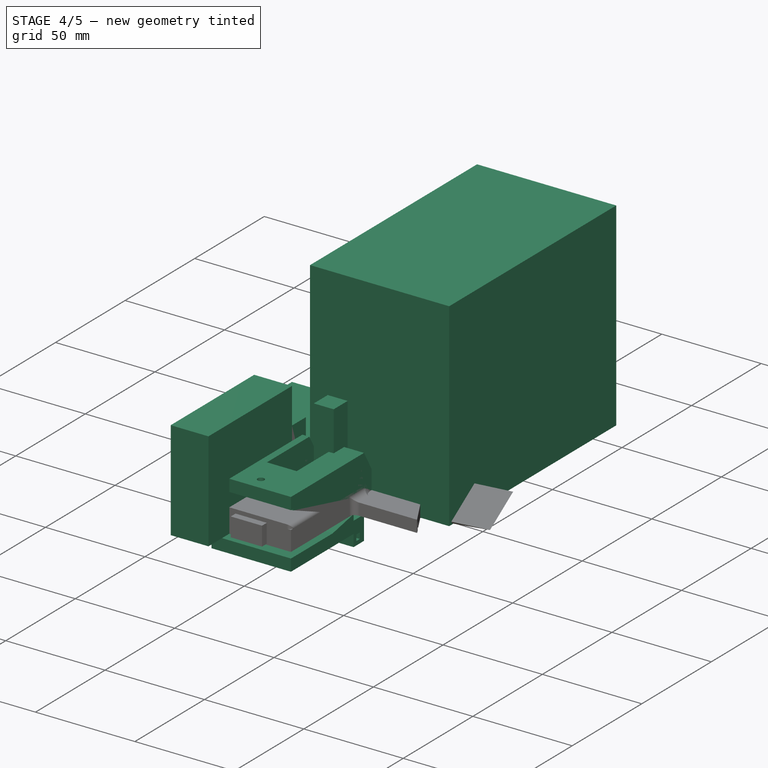
[diagram: stage 4 of 5 — iso view after this stage's code; geometry added in this stage tinted green]
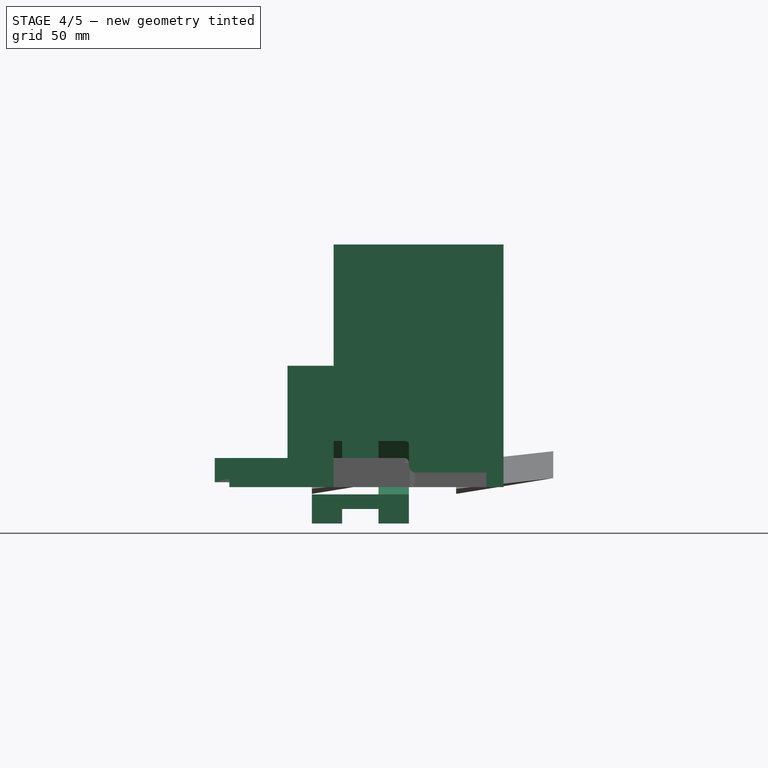
[diagram: stage 4 of 5 — front view after this stage's code; geometry added in this stage tinted green]
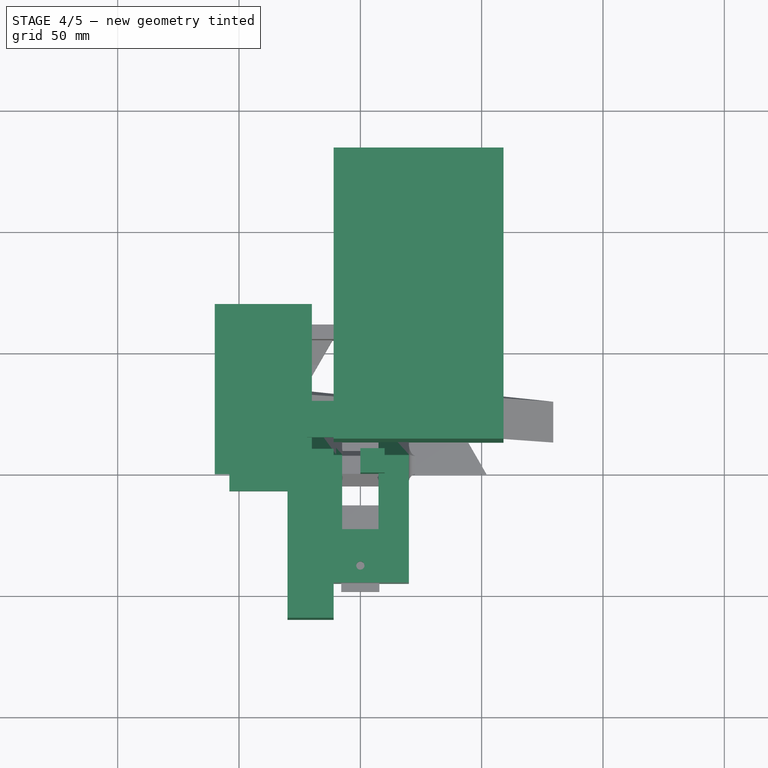
[diagram: stage 4 of 5 — top view after this stage's code; geometry added in this stage tinted green]
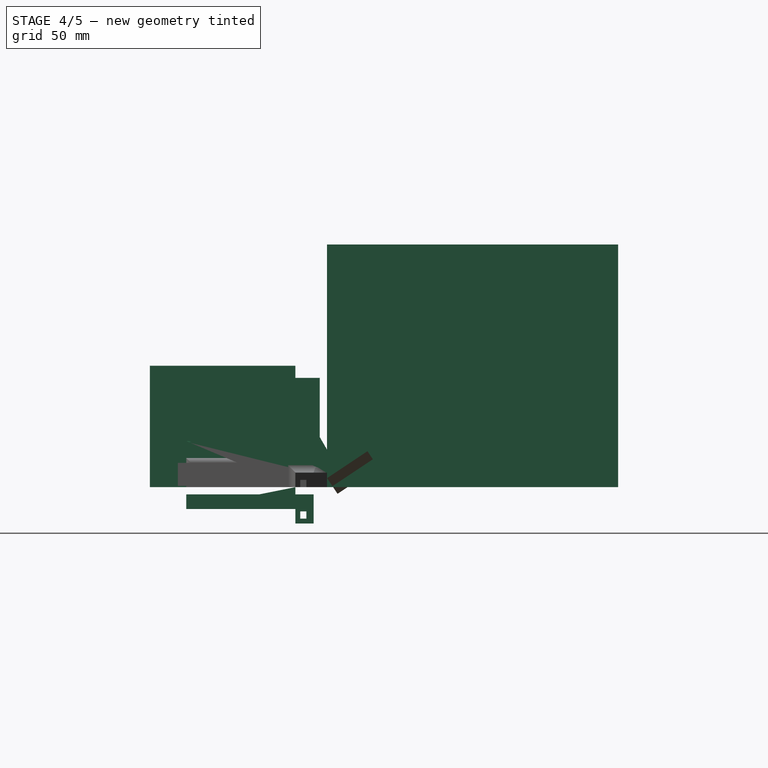
[diagram: stage 4 of 5 — right view after this stage's code; geometry added in this stage tinted green]
FEATURE [Part::Box] Box004  label="Cube004"
  AttacherType = Attacher::AttachEngine3D
  Height = 44.5
  Length = 40
  Placement = pos=(-20,55,0) rot=(0,0,1;0rad)
  Width = 6
FEATURE [Part::Box] Box005  label="Cube005"
  AttacherType = Attacher::AttachEngine3D
  Height = 30
  Length = 20
  Placement = pos=(-10,55,6) rot=(0,0,1;0rad)
  Width = 6
FEATURE [Part::Cut] Cut004004  label="parte_trasera"
  Base = -> Box004
  Tool = -> Box005
FEATURE [Part::Box] Box012  label="Cube011"
  AttacherType = Attacher::AttachEngine3D
  Height = 100
  Length = 70
  Placement = pos=(-11,13,0) rot=(0,0,1;0rad)
  Width = 120
FEATURE [Part::Box] Box013  label="Cube012"
  AttacherType = Attacher::AttachEngine3D
  Height = 10
  Length = 40
  Placement = pos=(-60,0,2) rot=(0,0,1;0rad)
  Width = 70
FEATURE [Part::Box] Box014  label="Cube013"
  AttacherType = Attacher::AttachEngine3D
  Height = 50
  Length = 19
  Placement = pos=(-30,-60,0) rot=(0,0,1;0rad)
  Width = 60
FEATURE [Part::Box] Box015  label="Cube014"
  AttacherType = Attacher::AttachEngine3D
  Height = 30
  Length = 10
  Placement = pos=(-21,0,2) rot=(0,0,1;0rad)
  Width = 10
FEATURE [Part::Box] Box016  label="Cube015"
  AttacherType = Attacher::AttachEngine3D
  Height = 10
  Length = 40
  Placement = pos=(-54,-7,0) rot=(0,0,1;0rad)
  Width = 10
FEATURE [Part::Box] Box017  label="Cube016"
  AttacherType = Attacher::AttachEngine3D
  Height = 22
  Length = 12.5
  Placement = pos=(7.5,0,3) rot=(0,0,1;0rad)
  Width = 7.5
FEATURE [Part::Cylinder] Cylinder001
  Angle = 360
  AttacherType = Attacher::AttachEngine3D
  Height = 30
  Placement = pos=(0,7,0) rot=(0,0,1;0rad)
  Radius = 1.7
FEATURE [Part::Box] Box018  label="Cube017"
  AttacherType = Attacher::AttachEngine3D
  Height = 6
  Length = 40
  Placement = pos=(0,0,20) rot=(0,0,1;0rad)
  Width = 51
FEATURE [Part::Box] Box019  label="Cube018"
  AttacherType = Attacher::AttachEngine3D
  Height = 6
  Length = 15
  Placement = pos=(12.5,22,20) rot=(0,0,1;0rad)
  Width = 70
FEATURE [Part::Cut] Cut004013
  Base = -> Box018
  Placement = pos=(-20,0,-1) rot=(0,0,1;0rad)
  Tool = -> Box019
FEATURE [Part::Cut] Cut004014
  Base = -> Cut004013
  Placement = pos=(0,-45,0) rot=(0,0,1;0rad)
  Tool = -> Cylinder001
FEATURE [Part::Box] Box020  label="Cube019"
  AttacherType = Attacher::AttachEngine3D
  Height = 22
  Length = 12.5
  Placement = pos=(-20,0,3) rot=(0,0,1;0rad)
  Width = 7.5
FEATURE [Part::MultiFuse] Fusion004004
  Shapes = -> [Cut004014,Box017,Box020]
FEATURE [Sketcher::SketchObject] Sketch009
  sketch-geometry (4):
    g0: LineSegment StartX=-95 StartY=0 StartZ=0 EndX=95 EndY=-9e-16 EndZ=0
    g1: LineSegment StartX=-95 StartY=0 StartZ=0 EndX=-85 EndY=61 EndZ=0
    g2: LineSegment StartX=95 StartY=-9e-16 StartZ=0 EndX=85 EndY=61 EndZ=0
    g3: LineSegment StartX=-85 StartY=61 StartZ=0 EndX=85 EndY=61 EndZ=0
  constraints (10):
    c: PointOnObject(g0,g-1)
    c: Symmetric(g0,g0,g-2)
    c: DistanceX(g0,g0) = 190
    c: Coincident(g1,g0)
    c: Coincident(g2,g0)
    c: Coincident(g3,g1)
    c: Coincident(g3,g2)
    c: Symmetric(g1,g2,g-2)
    c: DistanceX(g3,g3) = 170
    c: DistanceY(g0,g2) = 61
FEATURE [Part::Extrusion] Extrude011
  Base = -> Sketch009
  Dir = (0,0,1)
  DirMode = 2
  FaceMakerClass = Part::FaceMakerBullseye
  LengthFwd = 10
  LengthRev = 0
  Solid = true
  Symmetric = false
FEATURE [Part::Cut] Cut004020  label="molde_cortador002"
  Base = -> Box024
  Tool = -> Extrude011
FEATURE [Part::Cut] Cut004015  label="base_triangulo001"
  Base = -> Fusion004005
  Tool = -> Cut004020
FEATURE [Part::Cut] Cut004016  label="base_triangulo_con_canaleta001"
  Base = -> Cut004015
  Tool = -> Box023
FEATURE [Part::Feature] Fusion004009001  label="pieza_sin_refinar001"
  shape: bbox 103.9 x 106 x 42 mm, 40 faces (baked)
FEATURE [Part::Fillet] Fillet
  Base = -> Fusion004009001
  Edges = 12 edges r=2: [Edge4,Edge8,Edge38,Edge44,Edge56,Edge57,Edge60,Edge62,Edge64,Edge66,Edge67,Edge68]
FEATURE [Part::Fillet] Fillet008003
  Base = -> Fillet
  Edges = 2 edges r=2: [Edge92,Edge98]
FEATURE [Part::Fillet] Fillet008004
  Base = -> Fillet008003
  Edges = 4 edges r=2: [Edge22,Edge28,Edge83,Edge88]
FEATURE [Part::Fillet] Fillet008005
  Base = -> Fillet008004
  Edges = 4 edges r=5: [Edge105,Edge107,Edge108,Edge111]
FEATURE [Part::Fillet] Fillet008006
  Base = -> Fillet008005
  Edges = 2 edges r=1: [Edge107,Edge131]
FEATURE [Part::Fillet] Fillet008007
  Base = -> Fillet008006
  Edges = 2 edges r=2: [Edge3,Edge23]
FEATURE [Part::Chamfer] Chamfer  label="soporte_v2.2"
  Base = -> Fillet008007
  Edges = 2 edges r=5: [Edge154,Edge156]
FEATURE [Part::Box] Box028  label="Cube027"
  AttacherType = Attacher::AttachEngine3D
  Height = 113
  Length = 109
  Placement = pos=(-10,-55,0) rot=(0,0,1;0rad)
  Width = 156
FEATURE [Part::Feature] Chamfer001  label="soporte_v2.2_for_test"
  shape: bbox 101 x 106 x 42 mm, 68 faces (baked)
FEATURE [Part::Cut] Cut004021  label="test_v2.2"
  Base = -> Chamfer001
  Tool = -> Box028
FEATURE [Part::Box] Box029  label="refuerzo1"
  AttacherType = Attacher::AttachEngine3D
  Height = 6
  Length = 78
  Placement = pos=(-39,0,0) rot=(0,0,1;0rad)
  Width = 15
FEATURE [Part::Box] Box030  label="Cube029"
  AttacherType = Attacher::AttachEngine3D
  Height = 45
  Length = 10
  Width = 10
FEATURE [Part::Box] Box031  label="refuerzo2"
  AttacherType = Attacher::AttachEngine3D
  Height = 16
  Length = 46
  Placement = pos=(-22,15,0) rot=(0,0,1;0rad)
  Width = 15
FEATURE [Part::MultiFuse] Fusion004009004  label="soporte_sin_refinar_v3"
  Shapes = -> [Cut004004,Cut004016,Cut004022,Extrude016,Extrude017]
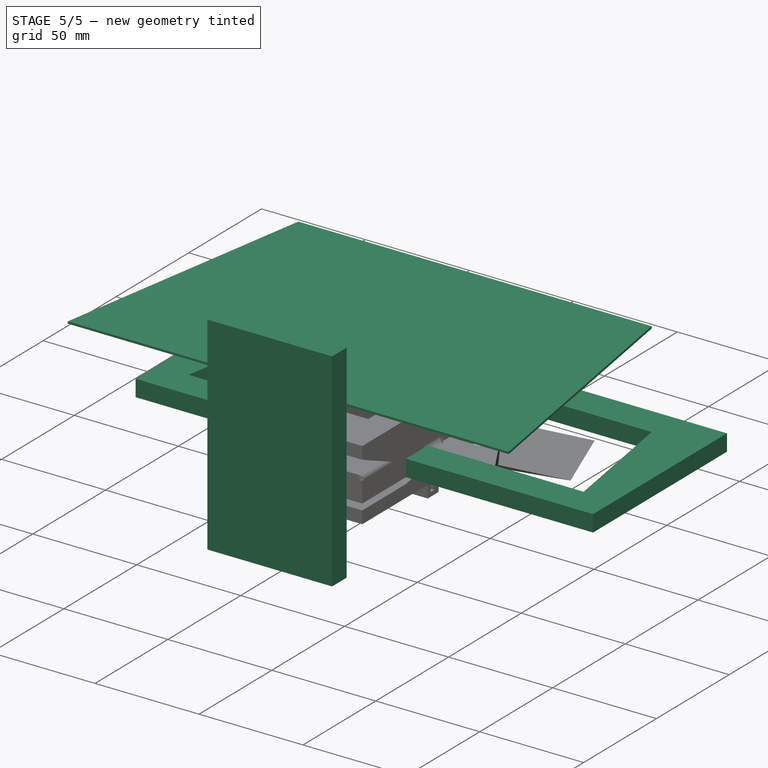
[diagram: stage 5 of 5 — iso view after this stage's code; geometry added in this stage tinted green]
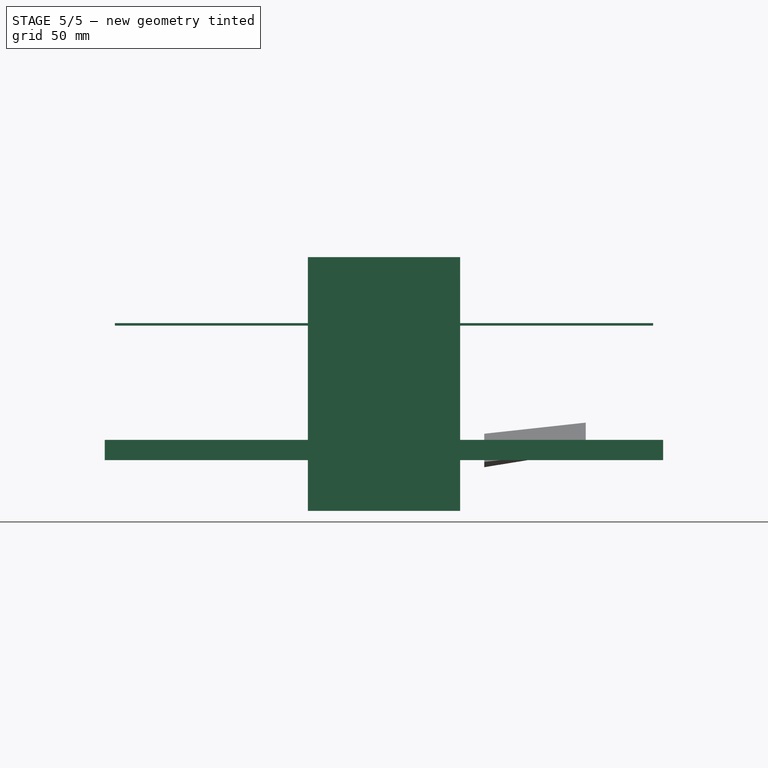
[diagram: stage 5 of 5 — front view after this stage's code; geometry added in this stage tinted green]
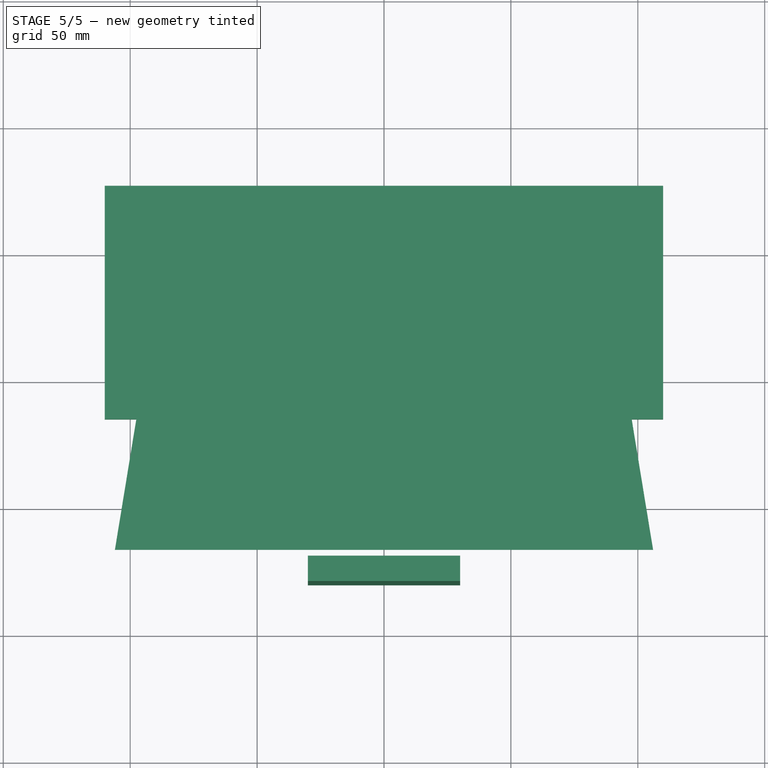
[diagram: stage 5 of 5 — top view after this stage's code; geometry added in this stage tinted green]
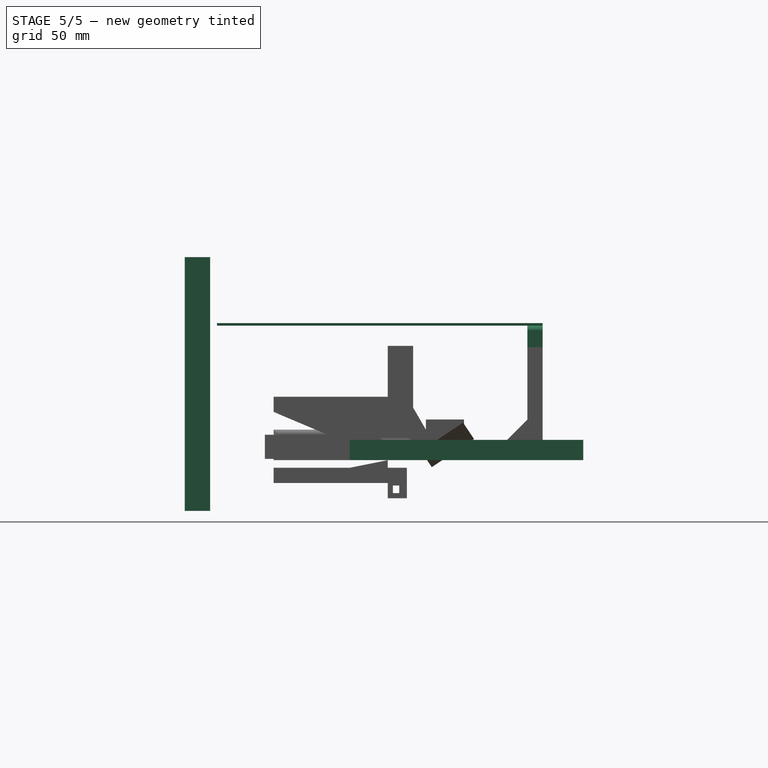
[diagram: stage 5 of 5 — right view after this stage's code; geometry added in this stage tinted green]
FEATURE [Sketcher::SketchObject] Sketch001
  sketch-geometry (4):
    g0: LineSegment StartX=-95 StartY=0 StartZ=0 EndX=95 EndY=-9e-16 EndZ=0
    g1: LineSegment StartX=-95 StartY=0 StartZ=0 EndX=-85 EndY=61 EndZ=0
    g2: LineSegment StartX=95 StartY=-9e-16 StartZ=0 EndX=85 EndY=61 EndZ=0
    g3: LineSegment StartX=-85 StartY=61 StartZ=0 EndX=85 EndY=61 EndZ=0
  constraints (10):
    c: PointOnObject(g0,g-1)
    c: Symmetric(g0,g0,g-2)
    c: DistanceX(g0,g0) = 190
    c: Coincident(g1,g0)
    c: Coincident(g2,g0)
    c: Coincident(g3,g1)
    c: Coincident(g3,g2)
    c: Symmetric(g1,g2,g-2)
    c: DistanceX(g3,g3) = 170
    c: DistanceY(g0,g2) = 61
FEATURE [Part::Extrusion] Extrude
  Base = -> Sketch001
  Dir = (0,0,1)
  DirMode = 2
  FaceMakerClass = Part::FaceMakerBullseye
  LengthFwd = 10
  LengthRev = 0
  Solid = true
  Symmetric = false
FEATURE [Part::Box] Box  label="Cube"
  AttacherType = Attacher::AttachEngine3D
  Height = 8
  Length = 220
  Placement = pos=(-110,-15,0) rot=(0,0,1;0rad)
  Width = 92
FEATURE [Part::Cut] Cut  label="molde_cortador"
  Base = -> Box
  Tool = -> Extrude
FEATURE [Part::Prism] Prism002
  AttacherType = Attacher::AttachEngine3D
  Circumradius = 60
  Height = 6
  Placement = pos=(0,23,0) rot=(0,0,-1;0.523599rad)
  Polygon = 3
FEATURE [Part::Prism] Prism003
  AttacherType = Attacher::AttachEngine3D
  Circumradius = 45
  Height = 6
  Placement = pos=(0,23,0) rot=(0,0,-1;0.523599rad)
  Polygon = 3
FEATURE [Part::Cut] Cut001
  Base = -> Prism002
  Placement = pos=(0,7,0) rot=(0,0,1;0rad)
  Tool = -> Prism003
FEATURE [Part::Box] Box001  label="Cube001"
  AttacherType = Attacher::AttachEngine3D
  Height = 6
  Length = 32
  Placement = pos=(-16,55,0) rot=(0,0,1;0rad)
  Width = 6
FEATURE [Part::MultiFuse] Fusion
  Shapes = -> [Cut001,Box001]
FEATURE [Sketcher::SketchObject] Sketch002
  sketch-geometry (4):
    g0: LineSegment StartX=-95 StartY=0 StartZ=0 EndX=95 EndY=-9e-16 EndZ=0
    g1: LineSegment StartX=-95 StartY=0 StartZ=0 EndX=-85 EndY=61 EndZ=0
    g2: LineSegment StartX=95 StartY=-9e-16 StartZ=0 EndX=85 EndY=61 EndZ=0
    g3: LineSegment StartX=-85 StartY=61 StartZ=0 EndX=85 EndY=61 EndZ=0
  constraints (10):
    c: PointOnObject(g0,g-1)
    c: Symmetric(g0,g0,g-2)
    c: DistanceX(g0,g0) = 190
    c: Coincident(g1,g0)
    c: Coincident(g2,g0)
    c: Coincident(g3,g1)
    c: Coincident(g3,g2)
    c: Symmetric(g1,g2,g-2)
    c: DistanceX(g3,g3) = 170
    c: DistanceY(g0,g2) = 61
FEATURE [Part::Box] Box002  label="Cube002"
  AttacherType = Attacher::AttachEngine3D
  Height = 8
  Length = 220
  Placement = pos=(-110,-15,0) rot=(0,0,1;0rad)
  Width = 113
FEATURE [Part::Extrusion] Extrude001
  Base = -> Sketch002
  Dir = (0,0,1)
  DirMode = 2
  FaceMakerClass = Part::FaceMakerBullseye
  LengthFwd = 10
  LengthRev = 0
  Solid = true
  Symmetric = false
FEATURE [Part::Cut] Cut002  label="molde_cortador001"
  Base = -> Box002
  Tool = -> Extrude001
FEATURE [Part::Cut] Cut003  label="base_triangulo"
  Base = -> Fusion
  Tool = -> Cut002
FEATURE [Part::Box] Box003  label="Cube003"
  AttacherType = Attacher::AttachEngine3D
  Height = 3
  Length = 220
  Placement = pos=(-110,2,0) rot=(0,0,1;0rad)
  Width = 2.5
FEATURE [Part::Cut] Cut004  label="base_triangulo_con_canaleta"
  Base = -> Cut003
  Tool = -> Box003
FEATURE [Part::Feature] Fusion001
  shape: bbox 190 x 63 x 3 mm, 10 faces (baked)
FEATURE [Sketcher::SketchObject] Sketch003
  ExternalGeometry = -> [Fusion001]
  sketch-geometry (4):
    g0: LineSegment StartX=-87.5 StartY=0 StartZ=0 EndX=87.5 EndY=0 EndZ=0
    g1: LineSegment StartX=-87.5 StartY=0 StartZ=0 EndX=-80 EndY=49 EndZ=0
    g2: LineSegment StartX=87.5 StartY=0 StartZ=0 EndX=80 EndY=49 EndZ=0
    g3: LineSegment StartX=-80 StartY=49 StartZ=0 EndX=80 EndY=49 EndZ=0
  constraints (10):
    c: PointOnObject(g0,g-1)
    c: Symmetric(g0,g0,g-2)
    c: DistanceX(g0,g0) = 175
    c: Coincident(g1,g0)
    c: Coincident(g2,g0)
    c: Coincident(g3,g1)
    c: Coincident(g3,g2)
    c: Symmetric(g1,g2,g-2)
    c: DistanceX(g3,g3) = 160
    c: DistanceY(g0,g2) = 49
FEATURE [Part::Extrusion] Extrude002
  Base = -> Sketch003
  Dir = (0,0,1)
  DirMode = 2
  FaceMakerClass = Part::FaceMakerBullseye
  LengthFwd = 10
  LengthRev = 0
  Placement = pos=(0,5,0) rot=(0,0,1;0rad)
  Solid = true
  Symmetric = false
FEATURE [Part::Cut] Cut004002  label="base"
  Base = -> Fusion001
  Tool = -> Extrude002
FEATURE [Sketcher::SketchObject] Sketch004
  ExternalGeometry = -> [Cut004002]
  MapMode = 5
  Placement = pos=(-92.5137,15.1662,-3.7e-15) rot=(-0.51489,0.606172,0.606172;4.09257rad)
  Support = -> [Cut004002]
  sketch-geometry (4):
    g0: LineSegment StartX=-46.4456 StartY=3 StartZ=0 EndX=17.3423 EndY=3 EndZ=0
    g1: LineSegment StartX=-46.4456 StartY=3 StartZ=0 EndX=-46.4456 EndY=53 EndZ=0
    g2: LineSegment StartX=-46.4456 StartY=53 StartZ=0 EndX=83.5544 EndY=53 EndZ=0
    g3: LineSegment StartX=83.5544 StartY=53 StartZ=0 EndX=17.3423 EndY=3 EndZ=0
  constraints (10):
    c: Coincident(g0,g-4)
    c: Coincident(g0,g-3)
    c: Vertical(g1)
    c: Coincident(g0,g1)
    c: DistanceY(g1,g1) = 50
    c: Coincident(g2,g1)
    c: Horizontal(g2)
    c: DistanceX(g2,g2) = 130
    c: Coincident(g3,g2)
    c: Coincident(g3,g0)
FEATURE [Part::Feature] Fusion002
  shape: bbox 190 x 63 x 3 mm, 10 faces (baked)
FEATURE [Sketcher::SketchObject] Sketch005
  ExternalGeometry = -> [Fusion002]
  sketch-geometry (4):
    g0: LineSegment StartX=-87.5 StartY=0 StartZ=0 EndX=87.5 EndY=0 EndZ=0
    g1: LineSegment StartX=-87.5 StartY=0 StartZ=0 EndX=-80 EndY=49 EndZ=0
    g2: LineSegment StartX=87.5 StartY=0 StartZ=0 EndX=80 EndY=49 EndZ=0
    g3: LineSegment StartX=-80 StartY=49 StartZ=0 EndX=80 EndY=49 EndZ=0
  constraints (10):
    c: PointOnObject(g0,g-1)
    c: Symmetric(g0,g0,g-2)
    c: DistanceX(g0,g0) = 175
    c: Coincident(g1,g0)
    c: Coincident(g2,g0)
    c: Coincident(g3,g1)
    c: Coincident(g3,g2)
    c: Symmetric(g1,g2,g-2)
    c: DistanceX(g3,g3) = 160
    c: DistanceY(g0,g2) = 49
FEATURE [Part::Extrusion] Extrude003
  Base = -> Sketch005
  Dir = (0,0,1)
  DirMode = 2
  FaceMakerClass = Part::FaceMakerBullseye
  LengthFwd = 10
  LengthRev = 0
  Placement = pos=(0,5,0) rot=(0,0,1;0rad)
  Solid = true
  Symmetric = false
FEATURE [Part::Cut] Cut004003  label="base001"
  Base = -> Fusion002
  Tool = -> Extrude003
FEATURE [Sketcher::SketchObject] Sketch006
  ExternalGeometry = -> [Cut004003]
  MapMode = 5
  Placement = pos=(92.5137,15.1662,-2.34e-14) rot=(0.51489,0.606172,0.606172;2.19062rad)
  Support = -> [Cut004003]
  sketch-geometry (4):
    g0: LineSegment StartX=-17.3423 StartY=3 StartZ=0 EndX=46.4456 EndY=3 EndZ=0
    g1: LineSegment StartX=46.4456 StartY=3 StartZ=0 EndX=46.4456 EndY=53 EndZ=0
    g2: LineSegment StartX=46.4456 StartY=53 StartZ=0 EndX=-83.5544 EndY=53 EndZ=0
    g3: LineSegment StartX=-83.5544 StartY=53 StartZ=0 EndX=-17.3423 EndY=3 EndZ=0
  constraints (10):
    c: Coincident(g0,g-4)
    c: Coincident(g0,g-3)
    c: Coincident(g1,g0)
    c: Vertical(g1)
    c: DistanceY(g1,g1) = 50
    c: Coincident(g2,g1)
    c: Horizontal(g2)
    c: Coincident(g3,g2)
    c: DistanceX(g2,g2) = 130
    c: Coincident(g0,g3)
FEATURE [Part::Extrusion] Extrude004
  Base = -> Sketch006
  Dir = (0.986828,0.161775,-2e-16)
  DirMode = 2
  FaceMakerClass = Part::FaceMakerBullseye
  LengthFwd = 20
  LengthRev = 0
  Solid = true
  Symmetric = false
FEATURE [Part::Extrusion] Extrude006
  Base = -> Sketch004
  Dir = (-0.986828,0.161775,-1e-16)
  DirMode = 2
  FaceMakerClass = Part::FaceMakerBullseye
  LengthFwd = 20
  LengthRev = 0
  Solid = true
  Symmetric = false
FEATURE [Sketcher::SketchObject] Sketch
  ExternalGeometry = -> [Extrude006,Extrude004]
  sketch-geometry (4):
    g0: LineSegment StartX=-85 StartY=61 StartZ=0 EndX=85 EndY=61 EndZ=0
    g1: LineSegment StartX=-106.031 StartY=-67.2876 StartZ=0 EndX=106.031 EndY=-67.2876 EndZ=0
    g2: LineSegment StartX=-85 StartY=61 StartZ=0 EndX=-106.031 EndY=-67.2876 EndZ=0
    g3: LineSegment StartX=85 StartY=61 StartZ=0 EndX=106.031 EndY=-67.2876 EndZ=0
  constraints (8):
    c: Coincident(g0,g-3)
    c: Coincident(g0,g-4)
    c: Coincident(g1,g-3)
    c: Coincident(g1,g-4)
    c: Coincident(g0,g2)
    c: Coincident(g0,g3)
    c: Coincident(g1,g2)
    c: Coincident(g1,g3)
FEATURE [Part::Extrusion] Extrude007  label="techo_posicion"
  Base = -> Sketch
  Dir = (0,0,1)
  DirMode = 2
  FaceMakerClass = Part::FaceMakerBullseye
  LengthFwd = 1
  LengthRev = 0
  Placement = pos=(0,0,53) rot=(0,0,1;0rad)
  Solid = true
  Symmetric = false
FEATURE [Part::Box] Box008  label="celular"
  AttacherType = Attacher::AttachEngine3D
  Height = 100
  Length = 60
  Placement = pos=(-30,-80,-20) rot=(0,0,1;0rad)
  Width = 10
FEATURE [Part::Feature] Fusion004001  label="Fusion005"
  shape: bbox 99.53 x 106 x 53 mm, 44 faces (baked)
FEATURE [Part::Fillet] Fillet006
  Base = -> Fusion004001
  Edges = 2 edges r=15: [Edge75,Edge79]
FEATURE [Part::Fillet] Fillet007
  Base = -> Fillet006
  Edges = 2 edges r=2: [Edge65,Edge67]
FEATURE [Part::Fillet] Fillet008  label="soporte_final_v2.1_00"
  Base = -> Fillet007
  Edges = 2 edges r=2: [Edge3,Edge19]
FEATURE [Part::Feature] Fillet008001  label="soporte_final_v2.002"
  shape: bbox 99.53 x 106 x 53 mm, 50 faces (baked)
FEATURE [Part::Box] Box011  label="Cube010"
  AttacherType = Attacher::AttachEngine3D
  Height = 100
  Length = 70
  Placement = pos=(10,-51,0) rot=(0,0,1;0rad)
  Width = 120
FEATURE [Part::Cut] Cut004007
  Base = -> Fillet008001
  Tool = -> Box011
FEATURE [Part::Cut] Cut004008
  Base = -> Cut004007
  Tool = -> Box012
FEATURE [Part::Cut] Cut004009
  Base = -> Cut004008
  Tool = -> Box013
FEATURE [Part::Cut] Cut004010
  Base = -> Cut004009
  Tool = -> Box014
FEATURE [Part::Cut] Cut004011
  Base = -> Cut004010
  Tool = -> Box015
FEATURE [Part::Fillet] Fillet008002  label="soporte_final_v2.1"
  Base = -> Fillet008
  Edges = 4 edges r=3: [Edge7,Edge53,Edge58,Edge60]
FEATURE [Part::Cut] Cut004012  label="test"
  Base = -> Cut004011
  Tool = -> Box016
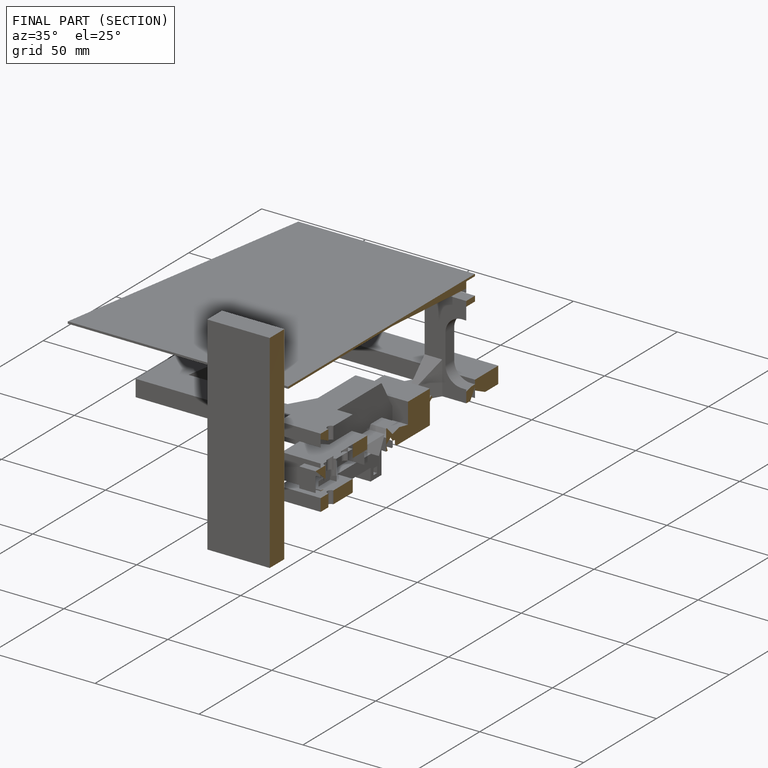
[diagram: finished part — half-section view (interior)]
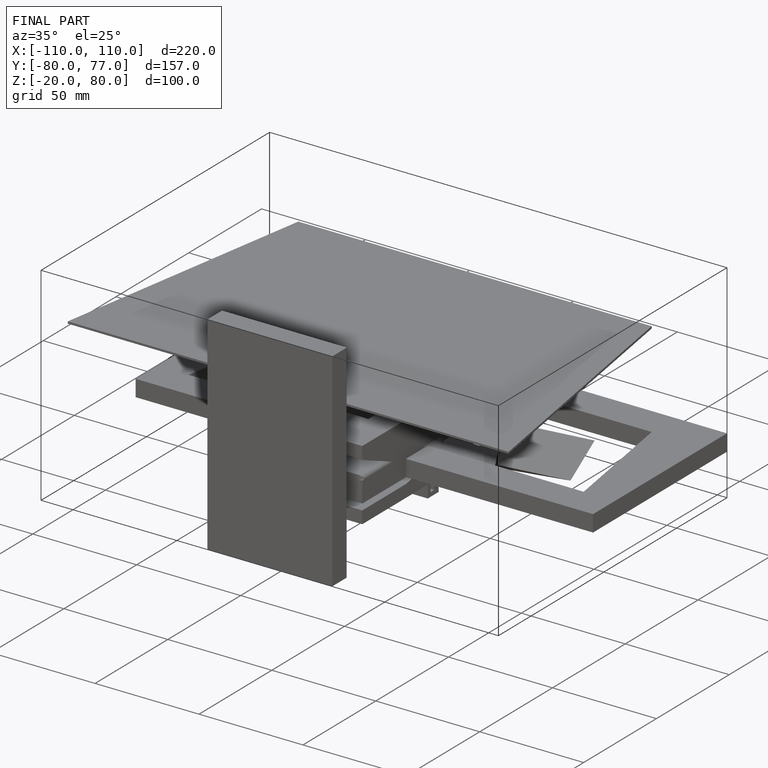
[diagram: finished part — iso view with bounding-box wireframe]
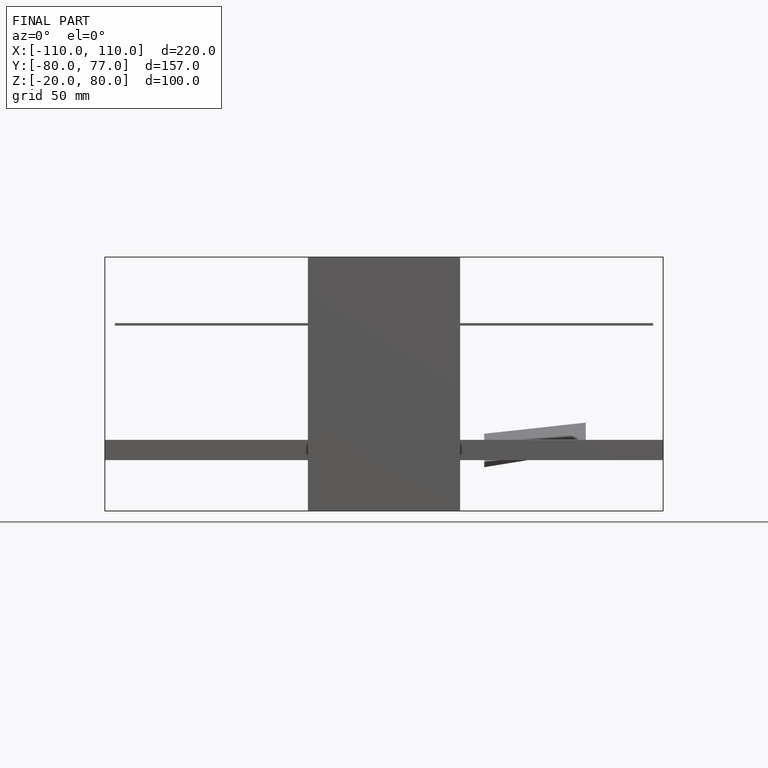
[diagram: finished part — front view with bounding-box wireframe]
